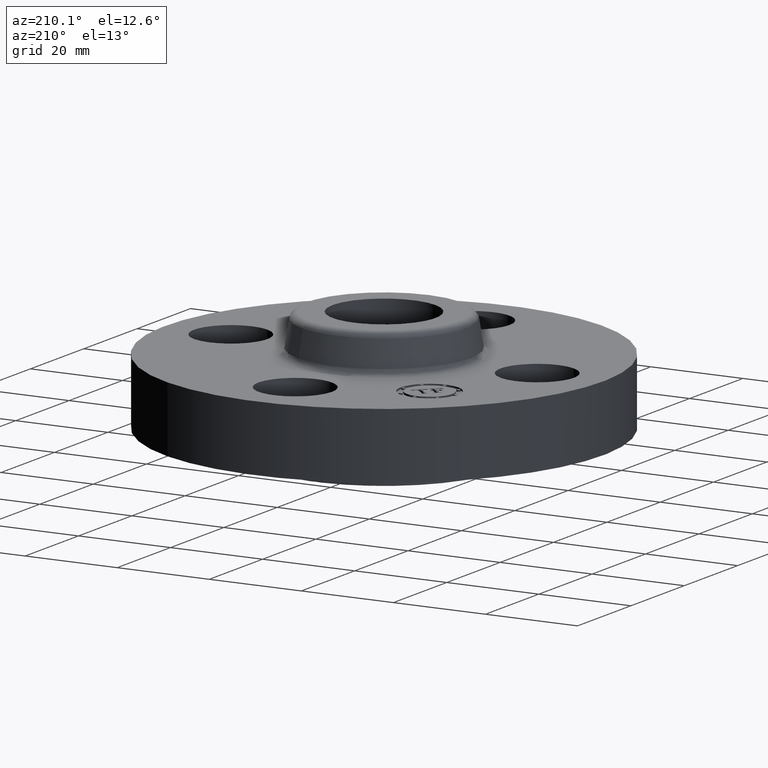
[diagram: clean part render]
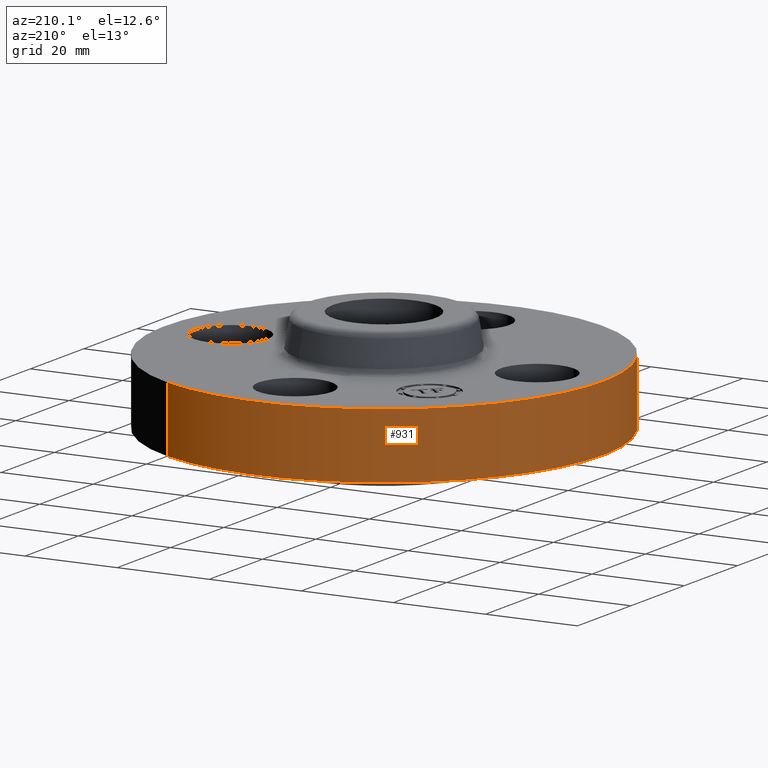
[diagram: same view with one face highlighted and labeled with its STEP entity id]
A machine part, auxiliary view. The second image highlights one B-rep face of the part: STEP entity #931.
In plain terms, the highlighted cylindrical surface (partial cylindrical patch) has radius 47.625 mm, axis along (0, 0, -1).
Its self-contained STEP definition (entity closure, byte-faithful):
#706=AXIS2_PLACEMENT_3D('Circle Axis2P3D',#704,#705,$) ;
#918=AXIS2_PLACEMENT_3D('Cylinder Axis2P3D',#915,#916,#917) ;
#922=AXIS2_PLACEMENT_3D('Circle Axis2P3D',#920,#921,$) ;
#699=CARTESIAN_POINT('Vertex',(0.898922884866,1.64546730357,0.560000000002)) ;
#701=CARTESIAN_POINT('Vertex',(-0.898922884888,-1.64546730355,0.559999999977)) ;
#704=CARTESIAN_POINT('Axis2P3D Location',(-8.39223703654E-016,9.9999099115E-012,0.560000000002)) ;
#886=CARTESIAN_POINT('Vertex',(0.898922884866,1.64546730355,0.)) ;
#888=CARTESIAN_POINT('Vertex',(-0.898922884866,-1.64546730358,0.)) ;
#891=CARTESIAN_POINT('Line Origine',(0.898922884888,1.64546730355,0.279999999988)) ;
#896=CARTESIAN_POINT('Line Origine',(-0.898922884888,-1.64546730355,0.279999999988)) ;
#915=CARTESIAN_POINT('Axis2P3D Location',(0.,0.,0.330500000001)) ;
#920=CARTESIAN_POINT('Axis2P3D Location',(0.,0.,6.99353086378E-017)) ;
#705=DIRECTION('Axis2P3D Direction',(0.,0.,-0.0393700787402)) ;
#892=DIRECTION('Vector Direction',(0.,0.,-0.0393700787402)) ;
#897=DIRECTION('Vector Direction',(0.,0.,-0.0393700787402)) ;
#916=DIRECTION('Axis2P3D Direction',(0.,0.,-0.0393700787402)) ;
#917=DIRECTION('Axis2P3D XDirection',(-0.0188750212049,-0.0345504945626,0.)) ;
#921=DIRECTION('Axis2P3D Direction',(0.,0.,-0.0393700787402)) ;
#893=VECTOR('Line Direction',#892,0.0393700787402) ;
#898=VECTOR('Line Direction',#897,0.0393700787402) ;
#926=ORIENTED_EDGE('',*,*,#924,.F.) ;
#927=ORIENTED_EDGE('',*,*,#900,.T.) ;
#928=ORIENTED_EDGE('',*,*,#708,.T.) ;
#929=ORIENTED_EDGE('',*,*,#895,.F.) ;
#931=ADVANCED_FACE('PartBody',(#930),#919,.T.) ;
#707=CIRCLE('generated circle',#706,1.87500000001) ;
#923=CIRCLE('generated circle',#922,1.87500000001) ;
#919=CYLINDRICAL_SURFACE('generated cylinder',#918,1.87500000001) ;
#708=EDGE_CURVE('',#702,#700,#707,.T.) ;
#895=EDGE_CURVE('',#887,#700,#894,.F.) ;
#900=EDGE_CURVE('',#889,#702,#899,.F.) ;
#924=EDGE_CURVE('',#889,#887,#923,.T.) ;
#925=EDGE_LOOP('',(#926,#927,#928,#929)) ;
#930=FACE_OUTER_BOUND('',#925,.T.) ;
#894=LINE('Line',#891,#893) ;
#899=LINE('Line',#896,#898) ;
#700=VERTEX_POINT('',#699) ;
#702=VERTEX_POINT('',#701) ;
#887=VERTEX_POINT('',#886) ;
#889=VERTEX_POINT('',#888) ;